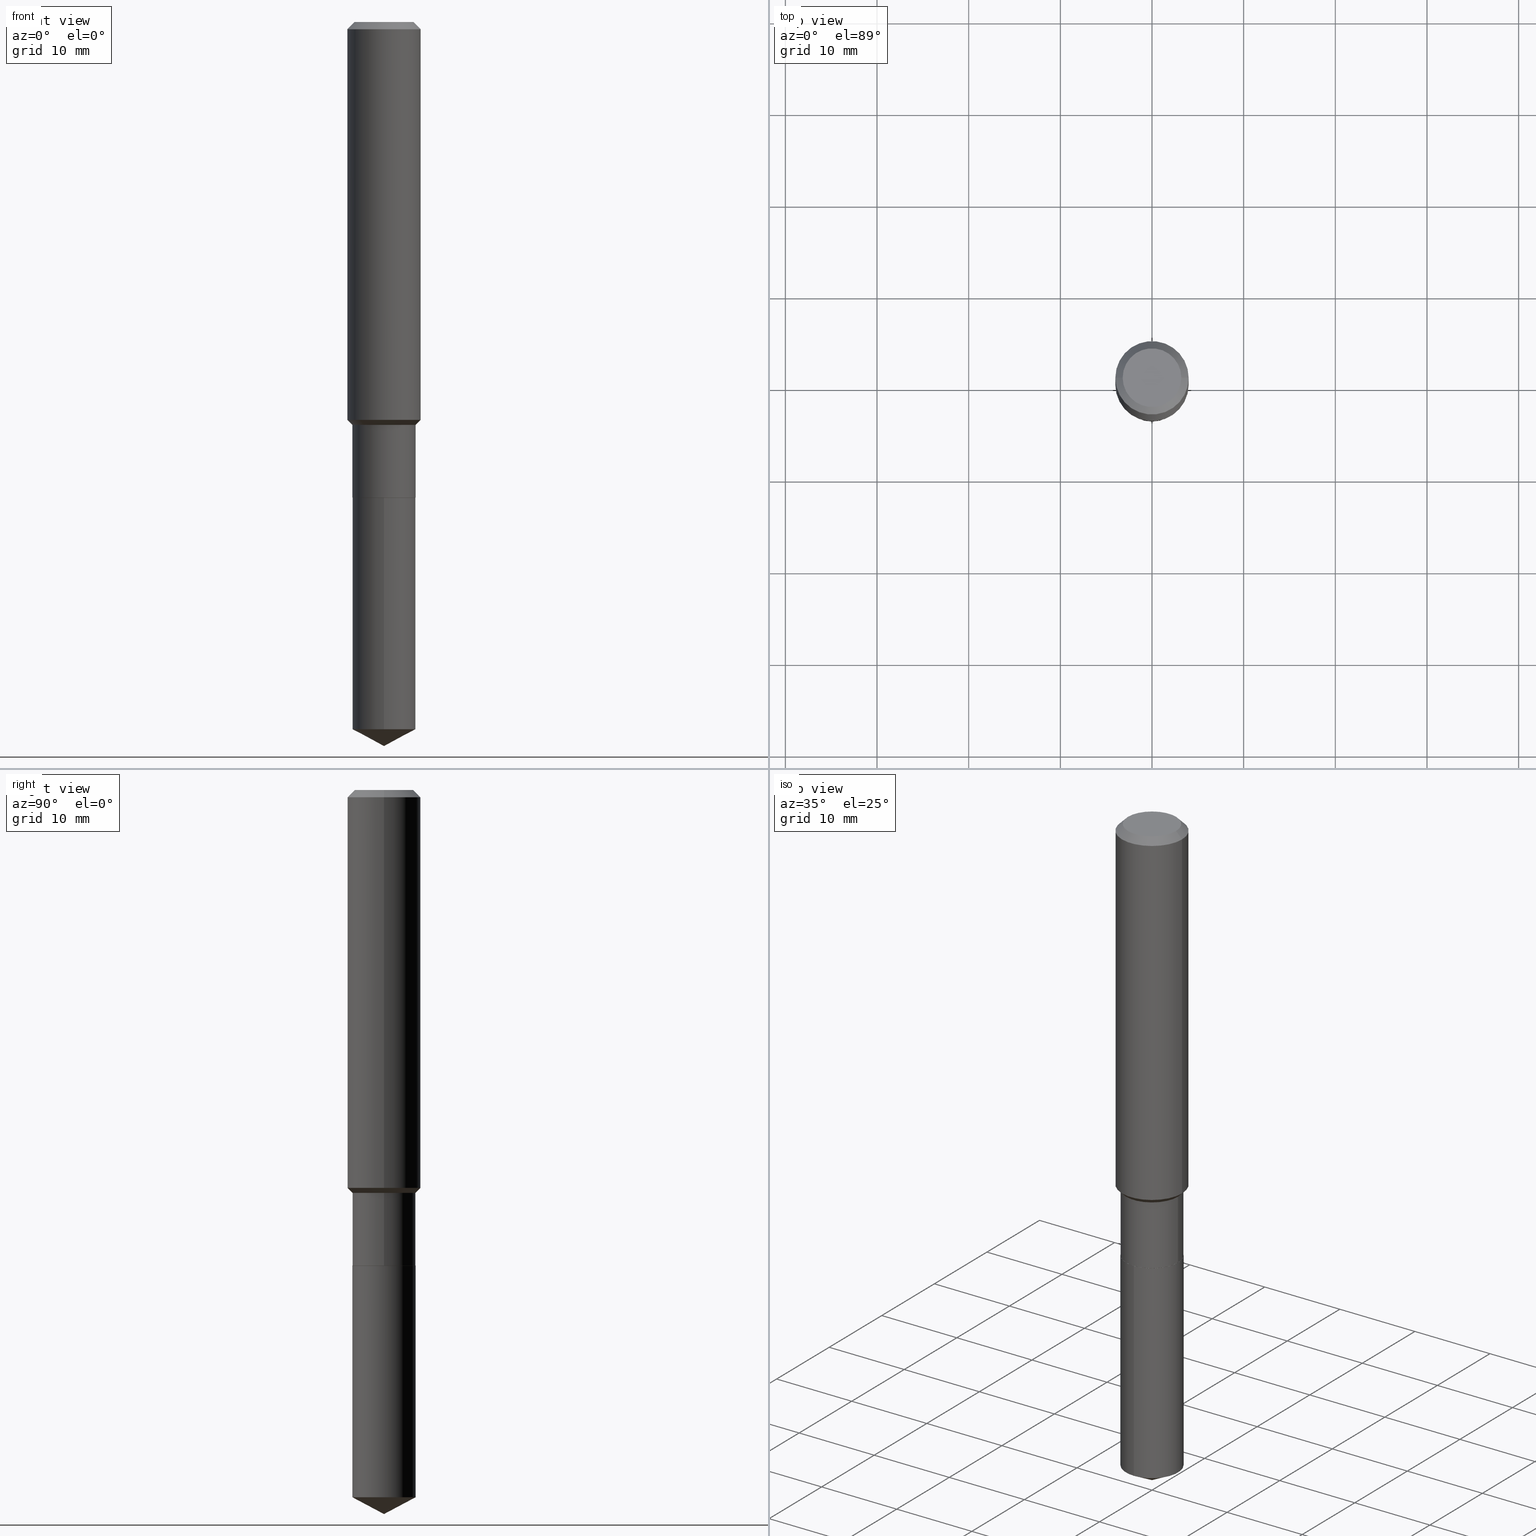
[diagram: canonical four-view strip — front | top / right | iso, engineering-drawing reading convention]
A machine part, canonical four-view strip (front | top / right | iso — engineering-drawing reading convention). The complete STEP part file that produces these views, byte-faithful:
ISO-10303-21;
HEADER;
FILE_DESCRIPTION (( 'STEP AP203' ),
    '1' );
FILE_NAME ('64639.STEP',
    '2024-04-24T18:32:12',
    ( '' ),
    ( '' ),
    'SwSTEP 2.0',
    'SolidWorks 2023',
    '' );
FILE_SCHEMA (( 'CONFIG_CONTROL_DESIGN' ));
ENDSEC;

DATA;
#1 = APPROVAL ( #198, 'UNSPECIFIED' ) ;
#2 = CARTESIAN_POINT ( 'NONE',  ( 0.1575000000000001954, -7.067281952019349393E-15, -1.709149999999999725 ) ) ;
#3 = VECTOR ( 'NONE', #383, 39.37007874015748143 ) ;
#4 = ORIENTED_EDGE ( 'NONE', *, *, #229, .T. ) ;
#5 = PERSON_AND_ORGANIZATION_ROLE ( 'creator' ) ;
#6 = LENGTH_MEASURE_WITH_UNIT ( LENGTH_MEASURE( 0.02539999999999999897 ), #429 );
#7 = CYLINDRICAL_SURFACE ( 'NONE', #277, 0.1358499999999999985 ) ;
#8 = COORDINATED_UNIVERSAL_TIME_OFFSET ( 5, 0, .BEHIND. ) ;
#9 = ORIENTED_EDGE ( 'NONE', *, *, #85, .T. ) ;
#10 = EDGE_CURVE ( 'NONE', #463, #348, #45, .T. ) ;
#11 = APPROVAL_ROLE ( '' ) ;
#12 = AXIS2_PLACEMENT_3D ( 'NONE', #445, #398, #102 ) ;
#13 = CARTESIAN_POINT ( 'NONE',  ( 4.232617409745234548E-29, -6.043055901269716567E-15, -1.730800000000000116 ) ) ;
#14 = LOCAL_TIME ( 14, 32, 12.00000000000000000, #462 ) ;
#15 = DIRECTION ( 'NONE',  ( -0.7071067811865464625, 7.493145998870351005E-15, 0.7071067811865486830 ) ) ;
#16 = CARTESIAN_POINT ( 'NONE',  ( 4.996826411678089735E-29, -7.134143819658199685E-15, -2.043299999999999894 ) ) ;
#17 = DIMENSIONAL_EXPONENTS ( 1.000000000000000000, 0.000000000000000000, 0.000000000000000000, 0.000000000000000000, 0.000000000000000000, 0.000000000000000000, 0.000000000000000000 ) ;
#18 = CC_DESIGN_PERSON_AND_ORGANIZATION_ASSIGNMENT ( #466, #243, ( #472 ) ) ;
#19 = LINE ( 'NONE', #103, #353 ) ;
#20 = AXIS2_PLACEMENT_3D ( 'NONE', #413, #75, #234 ) ;
#21 = CARTESIAN_POINT ( 'NONE',  ( 7.429094882501991014E-29, -1.060723419885419791E-14, -3.037967273708788607 ) ) ;
#22 = ADVANCED_FACE ( 'NONE', ( #43 ), #449, .T. ) ;
#23 = DIRECTION ( 'NONE',  ( 2.438088387897960049E-29, -3.491481338843145188E-15, -1.000000000000000000 ) ) ;
#24 = ADVANCED_FACE ( 'NONE', ( #92 ), #61, .T. ) ;
#25 = DIRECTION ( 'NONE',  ( -2.438088387897960049E-29, 3.491481338843145188E-15, 1.000000000000000000 ) ) ;
#26 = VECTOR ( 'NONE', #331, 39.37007874015748143 ) ;
#27 = LOCAL_TIME ( 14, 32, 12.00000000000000000, #122 ) ;
#28 = FACE_OUTER_BOUND ( 'NONE', #119, .T. ) ;
#29 = ADVANCED_FACE ( 'NONE', ( #176 ), #326, .T. ) ;
#30 = LINE ( 'NONE', #191, #188 ) ;
#31 = CARTESIAN_POINT ( 'NONE',  ( 0.000000000000000000, 0.000000000000000000, 0.000000000000000000 ) ) ;
#32 = ORIENTED_EDGE ( 'NONE', *, *, #406, .F. ) ;
#33 = CIRCLE ( 'NONE', #426, 0.1358499999999999985 ) ;
#34 = CIRCLE ( 'NONE', #254, 0.1358499999999999985 ) ;
#35 = LINE ( 'NONE', #420, #3 ) ;
#36 = DIRECTION ( 'NONE',  ( 2.445468806185136597E-29, -3.491481338843145583E-15, -1.000000000000000000 ) ) ;
#37 = VERTEX_POINT ( 'NONE', #206 ) ;
#38 = DATE_TIME_ROLE ( 'classification_date' ) ;
#39 = CARTESIAN_POINT ( 'NONE',  ( 7.703226739483228723E-31, -1.099816621735597661E-16, -0.03150000000000019451 ) ) ;
#40 = ADVANCED_FACE ( 'NONE', ( #328 ), #130, .T. ) ;
#41 = COORDINATED_UNIVERSAL_TIME_OFFSET ( 5, 0, .BEHIND. ) ;
#42 = AXIS2_PLACEMENT_3D ( 'NONE', #489, #152, #230 ) ;
#43 = FACE_OUTER_BOUND ( 'NONE', #74, .T. ) ;
#44 = APPROVAL_STATUS ( 'not_yet_approved' ) ;
#45 = LINE ( 'NONE', #465, #342 ) ;
#46 = CARTESIAN_POINT ( 'NONE',  ( -9.486354797636292620E-16, -0.1358500000000071317, -2.043299999999999450 ) ) ;
#47 = VERTEX_POINT ( 'NONE', #395 ) ;
#48 = EDGE_CURVE ( 'NONE', #108, #334, #128, .T. ) ;
#49 = LINE ( 'NONE', #213, #368 ) ;
#50 = CIRCLE ( 'NONE', #90, 0.1353499999999999981 ) ;
#51 = CIRCLE ( 'NONE', #42, 0.1575000000000000011 ) ;
#52 = ADVANCED_FACE ( 'NONE', ( #53 ), #389, .F. ) ;
#53 = FACE_OUTER_BOUND ( 'NONE', #308, .T. ) ;
#54 = DIRECTION ( 'NONE',  ( 1.000000000000000000, -6.982962677686269866E-15, 0.000000000000000000 ) ) ;
#55 = DIRECTION ( 'NONE',  ( 1.000000000000000000, -6.982962677686265133E-15, 0.000000000000000000 ) ) ;
#56 = CARTESIAN_POINT ( 'NONE',  ( 4.996826411678089735E-29, -7.134143819658199685E-15, -2.043299999999999894 ) ) ;
#57 = VECTOR ( 'NONE', #486, 39.37007874015748143 ) ;
#58 = FACE_OUTER_BOUND ( 'NONE', #307, .T. ) ;
#59 = PLANE ( 'NONE',  #437 ) ;
#60 = CARTESIAN_POINT ( 'NONE',  ( -9.486354797636292620E-16, -0.1358500000000071317, -2.043299999999999450 ) ) ;
#61 = CONICAL_SURFACE ( 'NONE', #269, 0.1353499999999999981, 0.7853981633975507526 ) ;
#62 = CIRCLE ( 'NONE', #12, 0.1358500000000000263 ) ;
#63 = VECTOR ( 'NONE', #134, 39.37007874015748143 ) ;
#64 = DIRECTION ( 'NONE',  ( -2.445308632458337588E-29, 3.491710716736444138E-15, 1.000000000000000000 ) ) ;
#65 = APPROVAL_DATE_TIME ( #485, #1 ) ;
#66 = FACE_OUTER_BOUND ( 'NONE', #382, .T. ) ;
#67 = PERSON_AND_ORGANIZATION_ROLE ( 'classification_officer' ) ;
#68 = DIRECTION ( 'NONE',  ( 1.000000000000000000, -6.982962677686269866E-15, 0.000000000000000000 ) ) ;
#69 = EDGE_CURVE ( 'NONE', #108, #463, #476, .T. ) ;
#70 = DATE_AND_TIME ( #264, #305 ) ;
#71 = AXIS2_PLACEMENT_3D ( 'NONE', #343, #228, #272 ) ;
#72 = CC_DESIGN_APPROVAL ( #423, ( #472 ) ) ;
#73 = DIRECTION ( 'NONE',  ( -2.445468806185136597E-29, 3.491481338843145583E-15, 1.000000000000000000 ) ) ;
#74 = EDGE_LOOP ( 'NONE', ( #402, #315, #298, #421 ) ) ;
#75 = DIRECTION ( 'NONE',  ( -2.445468806185136597E-29, 3.491481338843145583E-15, 1.000000000000000000 ) ) ;
#76 = ORIENTED_EDGE ( 'NONE', *, *, #141, .T. ) ;
#77 = MECHANICAL_CONTEXT ( 'NONE', #168, 'mechanical' ) ;
#78 = ORIENTED_EDGE ( 'NONE', *, *, #338, .F. ) ;
#79 = CLOSED_SHELL ( 'NONE', ( #432, #397, #210, #96, #52 ) ) ;
#80 = EDGE_CURVE ( 'NONE', #334, #47, #179, .T. ) ;
#81 = AXIS2_PLACEMENT_3D ( 'NONE', #104, #385, #197 ) ;
#82 = APPLICATION_PROTOCOL_DEFINITION ( 'international standard', 'config_control_design', 1994, #168 ) ;
#83 = PRODUCT_DEFINITION_FORMATION_WITH_SPECIFIED_SOURCE ( 'ANY', '', #286, .NOT_KNOWN. ) ;
#84 = DIRECTION ( 'NONE',  ( 1.000000000000000000, -6.982962677686269866E-15, 0.000000000000000000 ) ) ;
#85 = EDGE_CURVE ( 'NONE', #47, #310, #284, .T. ) ;
#86 = PERSON_AND_ORGANIZATION ( #339, #482 ) ;
#87 = DIRECTION ( 'NONE',  ( 2.445308632458337308E-29, -3.491710716736444138E-15, -1.000000000000000000 ) ) ;
#88 = DIRECTION ( 'NONE',  ( -0.7071067811865451302, 2.468850131082231817E-15, -0.7071067811865499042 ) ) ;
#89 = DIRECTION ( 'NONE',  ( -2.445468806185136597E-29, 3.491481338843145583E-15, 1.000000000000000000 ) ) ;
#90 = AXIS2_PLACEMENT_3D ( 'NONE', #321, #249, #55 ) ;
#91 =( GEOMETRIC_REPRESENTATION_CONTEXT ( 3 ) GLOBAL_UNCERTAINTY_ASSIGNED_CONTEXT ( ( #235 ) ) GLOBAL_UNIT_ASSIGNED_CONTEXT ( ( #357, #236, #175 ) ) REPRESENTATION_CONTEXT ( 'NONE', 'WORKASPACE' ) );
#92 = FACE_OUTER_BOUND ( 'NONE', #266, .T. ) ;
#93 = CC_DESIGN_PERSON_AND_ORGANIZATION_ASSIGNMENT ( #231, #67, ( #163 ) ) ;
#94 = DIRECTION ( 'NONE',  ( -1.000000000000000000, 6.982962677686265922E-15, 0.000000000000000000 ) ) ;
#95 = CARTESIAN_POINT ( 'NONE',  ( -0.1358499999999999708, 9.652723065300958949E-16, -6.682373320111289082E-30 ) ) ;
#96 = ADVANCED_FACE ( 'NONE', ( #468 ), #7, .T. ) ;
#97 = CARTESIAN_POINT ( 'NONE',  ( -9.439721640706201686E-47, 1.347742071746726764E-32, 3.860086710912459732E-18 ) ) ;
#98 = EDGE_CURVE ( 'NONE', #487, #461, #33, .T. ) ;
#99 = CIRCLE ( 'NONE', #224, 0.1260000000000000009 ) ;
#100 = CC_DESIGN_APPROVAL ( #170, ( #83 ) ) ;
#101 = EDGE_LOOP ( 'NONE', ( #158, #196, #145, #455 ) ) ;
#102 = DIRECTION ( 'NONE',  ( -6.982962677686265133E-15, -1.000000000000000000, 4.021859394426592341E-15 ) ) ;
#103 = CARTESIAN_POINT ( 'NONE',  ( -0.1353499999999999981, -6.172424226806904294E-15, -2.043299999999999894 ) ) ;
#104 = CARTESIAN_POINT ( 'NONE',  ( 4.995603677274997494E-29, -7.132398078988778970E-15, -2.042800000000000171 ) ) ;
#105 = EDGE_CURVE ( 'NONE', #37, #312, #50, .T. ) ;
#106 = EDGE_LOOP ( 'NONE', ( #414, #271, #318, #293 ) ) ;
#107 = DIRECTION ( 'NONE',  ( -2.445308632458337588E-29, 3.491710716736444138E-15, 1.000000000000000000 ) ) ;
#108 = VERTEX_POINT ( 'NONE', #292 ) ;
#109 = ORIENTED_EDGE ( 'NONE', *, *, #415, .T. ) ;
#110 = CARTESIAN_POINT ( 'NONE',  ( -8.866626721222367767E-28, 1.266094758724211948E-13, 36.25987874015748247 ) ) ;
#111 = ORIENTED_EDGE ( 'NONE', *, *, #448, .T. ) ;
#112 = CC_DESIGN_PERSON_AND_ORGANIZATION_ASSIGNMENT ( #416, #451, ( #83 ) ) ;
#113 = CYLINDRICAL_SURFACE ( 'NONE', #261, 0.1358499999999999708 ) ;
#114 = EDGE_LOOP ( 'NONE', ( #257, #4, #422, #481 ) ) ;
#115 = AXIS2_PLACEMENT_3D ( 'NONE', #56, #183, #473 ) ;
#116 = CARTESIAN_POINT ( 'NONE',  ( 0.1353499999999999981, -8.079287818083035638E-15, -2.043299999999999894 ) ) ;
#117 = VERTEX_POINT ( 'NONE', #374 ) ;
#118 = DIRECTION ( 'NONE',  ( 0.000000000000000000, 0.000000000000000000, 1.000000000000000000 ) ) ;
#119 = EDGE_LOOP ( 'NONE', ( #233, #192 ) ) ;
#120 = ORIENTED_EDGE ( 'NONE', *, *, #184, .T. ) ;
#121 = MANIFOLD_SOLID_BREP ( 'Body-Move/Copy2[2]', #181 ) ;
#122 = COORDINATED_UNIVERSAL_TIME_OFFSET ( 5, 0, .BEHIND. ) ;
#123 = VERTEX_POINT ( 'NONE', #256 ) ;
#124 = CC_DESIGN_PERSON_AND_ORGANIZATION_ASSIGNMENT ( #267, #5, ( #83 ) ) ;
#125 = AXIS2_PLACEMENT_3D ( 'NONE', #127, #89, #84 ) ;
#126 = VECTOR ( 'NONE', #199, 39.37007874015748143 ) ;
#127 = CARTESIAN_POINT ( 'NONE',  ( 4.232617409745234548E-29, -6.043055901269716567E-15, -1.730800000000000116 ) ) ;
#128 = LINE ( 'NONE', #323, #407 ) ;
#129 = DIRECTION ( 'NONE',  ( -6.982962677686266711E-15, -1.000000000000000000, 4.021859394426593130E-15 ) ) ;
#130 = CONICAL_SURFACE ( 'NONE', #456, 0.1575000000000000011, 0.7853981633974449483 ) ;
#131 = ADVANCED_FACE ( 'NONE', ( #58 ), #161, .T. ) ;
#132 = ORIENTED_EDGE ( 'NONE', *, *, #98, .F. ) ;
#133 = PRODUCT_DEFINITION_SHAPE ( 'NONE', 'NONE',  #472 ) ;
#134 = DIRECTION ( 'NONE',  ( -2.445468806185136877E-29, 3.491481338843145188E-15, 1.000000000000000000 ) ) ;
#135 = ADVANCED_FACE ( 'NONE', ( #144 ), #369, .F. ) ;
#136 = ORIENTED_EDGE ( 'NONE', *, *, #167, .T. ) ;
#137 = DIRECTION ( 'NONE',  ( -2.445468806185136597E-29, 3.491481338843145583E-15, 1.000000000000000000 ) ) ;
#138 = ORIENTED_EDGE ( 'NONE', *, *, #202, .T. ) ;
#139 = DIRECTION ( 'NONE',  ( 1.000000000000000000, -6.982962677686265922E-15, 4.876176775795935793E-29 ) ) ;
#140 = AXIS2_PLACEMENT_3D ( 'NONE', #110, #107, #262 ) ;
#141 = EDGE_CURVE ( 'NONE', #334, #348, #223, .T. ) ;
#142 = DIRECTION ( 'NONE',  ( 1.000000000000000000, -6.982962677686265922E-15, 4.876281427513067258E-29 ) ) ;
#143 = ADVANCED_FACE ( 'NONE', ( #28 ), #59, .F. ) ;
#144 = FACE_OUTER_BOUND ( 'NONE', #360, .T. ) ;
#145 = ORIENTED_EDGE ( 'NONE', *, *, #167, .F. ) ;
#146 = DIRECTION ( 'NONE',  ( -2.445468806185136597E-29, 3.491481338843145583E-15, 1.000000000000000000 ) ) ;
#147 = AXIS2_PLACEMENT_3D ( 'NONE', #356, #280, #180 ) ;
#148 = AXIS2_PLACEMENT_3D ( 'NONE', #189, #289, #447 ) ;
#149 = ORIENTED_EDGE ( 'NONE', *, *, #151, .T. ) ;
#150 = APPROVAL_PERSON_ORGANIZATION ( #391, #170, #205 ) ;
#151 = EDGE_CURVE ( 'NONE', #263, #461, #367, .T. ) ;
#152 = DIRECTION ( 'NONE',  ( -2.445468806185136597E-29, 3.491481338843145583E-15, 1.000000000000000000 ) ) ;
#153 = VERTEX_POINT ( 'NONE', #185 ) ;
#154 = EDGE_LOOP ( 'NONE', ( #372, #443, #120, #392 ) ) ;
#155 = EDGE_CURVE ( 'NONE', #157, #117, #299, .T. ) ;
#156 = CYLINDRICAL_SURFACE ( 'NONE', #329, 0.1358499999999999985 ) ;
#157 = VERTEX_POINT ( 'NONE', #337 ) ;
#158 = ORIENTED_EDGE ( 'NONE', *, *, #217, .T. ) ;
#159 = CARTESIAN_POINT ( 'NONE',  ( 0.000000000000000000, 0.000000000000000000, 0.000000000000000000 ) ) ;
#160 = EDGE_LOOP ( 'NONE', ( #358, #287, #376 ) ) ;
#161 = CONICAL_SURFACE ( 'NONE', #436, 0.1358499999999999708, 0.7853981633974467247 ) ;
#162 = AXIS2_PLACEMENT_3D ( 'NONE', #459, #118, #433 ) ;
#163 = SECURITY_CLASSIFICATION ( '', '', #386 ) ;
#164 = CARTESIAN_POINT ( 'NONE',  ( -9.486354797636052018E-16, -0.1358500000000106289, -3.037967273708788163 ) ) ;
#165 = EDGE_CURVE ( 'NONE', #348, #334, #304, .T. ) ;
#166 = ORIENTED_EDGE ( 'NONE', *, *, #338, .T. ) ;
#167 = EDGE_CURVE ( 'NONE', #461, #487, #34, .T. ) ;
#168 = APPLICATION_CONTEXT ( 'configuration controlled 3d designs of mechanical parts and assemblies' ) ;
#169 = APPROVAL_ROLE ( '' ) ;
#170 = APPROVAL ( #44, 'UNSPECIFIED' ) ;
#171 = DIRECTION ( 'NONE',  ( -2.445308632458337588E-29, 3.491710716736444138E-15, 1.000000000000000000 ) ) ;
#172 = DIRECTION ( 'NONE',  ( -6.165590087286835240E-15, -0.8829475928589264333, 0.4694715627858918050 ) ) ;
#173 = DIRECTION ( 'NONE',  ( -2.445468806185136597E-29, 3.491481338843145583E-15, 1.000000000000000000 ) ) ;
#174 = CIRCLE ( 'NONE', #71, 0.1358499999999999985 ) ;
#175 =( NAMED_UNIT ( * ) SI_UNIT ( $, .STERADIAN. ) SOLID_ANGLE_UNIT ( ) );
#176 = FACE_OUTER_BOUND ( 'NONE', #458, .T. ) ;
#177 = PRODUCT_RELATED_PRODUCT_CATEGORY ( 'detail', '', ( #286 ) ) ;
#178 = EDGE_CURVE ( 'NONE', #117, #263, #62, .T. ) ;
#179 = LINE ( 'NONE', #246, #247 ) ;
#180 = DIRECTION ( 'NONE',  ( 1.000000000000000000, -6.982962677686265922E-15, 0.000000000000000000 ) ) ;
#181 = CLOSED_SHELL ( 'NONE', ( #24, #40, #300, #131, #306, #440, #22, #29, #371, #143, #135, #242 ) ) ;
#182 = DIRECTION ( 'NONE',  ( -0.7071067811866199593, 7.493145998870616062E-15, 0.7071067811864750752 ) ) ;
#183 = DIRECTION ( 'NONE',  ( -2.445468806185136597E-29, 3.491481338843145583E-15, 1.000000000000000000 ) ) ;
#184 = EDGE_CURVE ( 'NONE', #123, #463, #471, .T. ) ;
#185 = CARTESIAN_POINT ( 'NONE',  ( -0.1260000000000000009, 9.348441284752484904E-16, 3.860086710906114178E-18 ) ) ;
#186 = EDGE_CURVE ( 'NONE', #153, #208, #464, .T. ) ;
#187 = DIRECTION ( 'NONE',  ( 1.000000000000000000, -6.982962677686265922E-15, 0.000000000000000000 ) ) ;
#188 = VECTOR ( 'NONE', #88, 39.37007874015748143 ) ;
#189 = CARTESIAN_POINT ( 'NONE',  ( -8.866626721222367767E-28, 1.266094758724211948E-13, 36.25987874015748247 ) ) ;
#190 = VERTEX_POINT ( 'NONE', #446 ) ;
#191 = CARTESIAN_POINT ( 'NONE',  ( -0.1575000000000000011, 9.898349595620272334E-16, -0.03150000000000019451 ) ) ;
#192 = ORIENTED_EDGE ( 'NONE', *, *, #251, .T. ) ;
#193 = CYLINDRICAL_SURFACE ( 'NONE', #201, 0.1575000000000000844 ) ;
#194 = AXIS2_PLACEMENT_3D ( 'NONE', #259, #373, #187 ) ;
#195 = CARTESIAN_POINT ( 'NONE',  ( 0.1575000000000000011, -1.209798283909146741E-15, -0.03150000000000019451 ) ) ;
#196 = ORIENTED_EDGE ( 'NONE', *, *, #412, .T. ) ;
#197 = DIRECTION ( 'NONE',  ( 1.000000000000000000, -6.982962677686268288E-15, 0.000000000000000000 ) ) ;
#198 = APPROVAL_STATUS ( 'not_yet_approved' ) ;
#199 = DIRECTION ( 'NONE',  ( 0.7071067811865451302, -7.319954787623248157E-15, -0.7071067811865499042 ) ) ;
#200 = AXIS2_PLACEMENT_3D ( 'NONE', #434, #87, #204 ) ;
#201 = AXIS2_PLACEMENT_3D ( 'NONE', #31, #340, #303 ) ;
#202 = EDGE_CURVE ( 'NONE', #312, #190, #19, .T. ) ;
#203 = DATE_AND_TIME ( #387, #14 ) ;
#204 = DIRECTION ( 'NONE',  ( 6.982962677686265922E-15, 1.000000000000000000, -3.491710716736444138E-15 ) ) ;
#205 = APPROVAL_ROLE ( '' ) ;
#206 = CARTESIAN_POINT ( 'NONE',  ( 0.1353499999999999981, -8.079287818083035638E-15, -2.043299999999999894 ) ) ;
#207 = APPLICATION_PROTOCOL_DEFINITION ( 'international standard', 'config_control_design', 1994, #245 ) ;
#208 = VERTEX_POINT ( 'NONE', #401 ) ;
#209 = CC_DESIGN_PERSON_AND_ORGANIZATION_ASSIGNMENT ( #325, #279, ( #286 ) ) ;
#210 = ADVANCED_FACE ( 'NONE', ( #222 ), #344, .T. ) ;
#211 = AXIS2_PLACEMENT_3D ( 'NONE', #405, #25, #139 ) ;
#212 = AXIS2_PLACEMENT_3D ( 'NONE', #39, #36, #452 ) ;
#213 = CARTESIAN_POINT ( 'NONE',  ( 7.605398908671921742E-29, -1.085991867119368954E-14, -3.110199999999999854 ) ) ;
#214 = ORIENTED_EDGE ( 'NONE', *, *, #105, .T. ) ;
#215 = CARTESIAN_POINT ( 'NONE',  ( 7.703226739483228723E-31, -1.099816621735597661E-16, -0.03150000000000019451 ) ) ;
#216 = DIRECTION ( 'NONE',  ( -2.445468806185136597E-29, 3.491481338843145583E-15, 1.000000000000000000 ) ) ;
#217 = EDGE_CURVE ( 'NONE', #263, #117, #408, .T. ) ;
#218 = CONICAL_SURFACE ( 'NONE', #140, 74.04434902938356799, 1.082104136236486713 ) ;
#219 = CARTESIAN_POINT ( 'NONE',  ( 0.1358499999999999708, -9.486354797636791575E-16, 6.624286149918777895E-30 ) ) ;
#220 = DIRECTION ( 'NONE',  ( 1.000000000000000000, -6.982962677686265922E-15, 0.000000000000000000 ) ) ;
#221 = DIRECTION ( 'NONE',  ( -2.445308632458337308E-29, 3.491710716736444138E-15, 1.000000000000000000 ) ) ;
#222 = FACE_OUTER_BOUND ( 'NONE', #160, .T. ) ;
#223 = CIRCLE ( 'NONE', #354, 0.1575000000000001954 ) ;
#224 = AXIS2_PLACEMENT_3D ( 'NONE', #97, #73, #457 ) ;
#225 = DIRECTION ( 'NONE',  ( -6.982962677686266711E-15, -1.000000000000000000, 4.021859394426593130E-15 ) ) ;
#226 = DESIGN_CONTEXT ( 'detailed design', #245, 'design' ) ;
#227 = ORIENTED_EDGE ( 'NONE', *, *, #186, .F. ) ;
#228 = DIRECTION ( 'NONE',  ( -2.445468806185136597E-29, 3.491481338843145583E-15, 1.000000000000000000 ) ) ;
#229 = EDGE_CURVE ( 'NONE', #190, #108, #439, .T. ) ;
#230 = DIRECTION ( 'NONE',  ( 1.000000000000000000, -6.982962677686265922E-15, 0.000000000000000000 ) ) ;
#231 = PERSON_AND_ORGANIZATION ( #339, #482 ) ;
#232 = DIRECTION ( 'NONE',  ( 0.7071067811866199593, -2.468850131083015945E-15, 0.7071067811864750752 ) ) ;
#233 = ORIENTED_EDGE ( 'NONE', *, *, #186, .T. ) ;
#234 = DIRECTION ( 'NONE',  ( 1.000000000000000000, -6.982962677686265133E-15, 0.000000000000000000 ) ) ;
#235 = UNCERTAINTY_MEASURE_WITH_UNIT (LENGTH_MEASURE( 1.000000000000000082E-05 ), #357, 'distance_accuracy_value', 'NONE');
#236 =( NAMED_UNIT ( * ) PLANE_ANGLE_UNIT ( ) SI_UNIT ( $, .RADIAN. ) );
#237 = ORIENTED_EDGE ( 'NONE', *, *, #105, .F. ) ;
#238 = CONICAL_SURFACE ( 'NONE', #115, 0.1353499999999999981, 0.7853981633975507526 ) ;
#239 = CC_DESIGN_SECURITY_CLASSIFICATION ( #163, ( #83 ) ) ;
#240 = APPROVAL_STATUS ( 'not_yet_approved' ) ;
#241 = ORIENTED_EDGE ( 'NONE', *, *, #412, .F. ) ;
#242 = ADVANCED_FACE ( 'NONE', ( #399 ), #238, .T. ) ;
#243 = PERSON_AND_ORGANIZATION_ROLE ( 'creator' ) ;
#244 = DIRECTION ( 'NONE',  ( -2.445308632458337588E-29, 3.491710716736444138E-15, 1.000000000000000000 ) ) ;
#245 = APPLICATION_CONTEXT ( 'configuration controlled 3d designs of mechanical parts and assemblies' ) ;
#246 = CARTESIAN_POINT ( 'NONE',  ( -0.1575000000000000844, 1.119104808822158392E-15, -7.747322767151481189E-30 ) ) ;
#247 = VECTOR ( 'NONE', #366, 39.37007874015748143 ) ;
#248 = LOCAL_TIME ( 14, 32, 12.00000000000000000, #41 ) ;
#249 = DIRECTION ( 'NONE',  ( -2.445468806185136597E-29, 3.491481338843145583E-15, 1.000000000000000000 ) ) ;
#250 = DIRECTION ( 'NONE',  ( -6.982962677686265133E-15, -1.000000000000000000, 4.021859394426592341E-15 ) ) ;
#251 = EDGE_CURVE ( 'NONE', #208, #153, #99, .T. ) ;
#252 = EDGE_CURVE ( 'NONE', #123, #190, #174, .T. ) ;
#253 = DIRECTION ( 'NONE',  ( -2.445468806185136877E-29, 3.491481338843145188E-15, 1.000000000000000000 ) ) ;
#254 = AXIS2_PLACEMENT_3D ( 'NONE', #442, #336, #295 ) ;
#255 = APPROVAL_PERSON_ORGANIZATION ( #320, #1, #169 ) ;
#256 = CARTESIAN_POINT ( 'NONE',  ( 0.1358499999999999985, -8.081033558752457931E-15, -2.042800000000000171 ) ) ;
#257 = ORIENTED_EDGE ( 'NONE', *, *, #252, .T. ) ;
#258 = DIRECTION ( 'NONE',  ( 1.000000000000000000, -6.982962677686269866E-15, 0.000000000000000000 ) ) ;
#259 = CARTESIAN_POINT ( 'NONE',  ( 4.179673010091325437E-29, -5.967465330283761124E-15, -1.709149999999999725 ) ) ;
#260 = LINE ( 'NONE', #480, #57 ) ;
#261 = AXIS2_PLACEMENT_3D ( 'NONE', #317, #346, #309 ) ;
#262 = DIRECTION ( 'NONE',  ( -6.982962677686266711E-15, -1.000000000000000000, 3.541896320645559291E-15 ) ) ;
#263 = VERTEX_POINT ( 'NONE', #164 ) ;
#264 = CALENDAR_DATE ( 2024, 24, 4 ) ;
#265 = LINE ( 'NONE', #116, #362 ) ;
#266 = EDGE_LOOP ( 'NONE', ( #214, #138, #273, #274 ) ) ;
#267 = PERSON_AND_ORGANIZATION ( #339, #482 ) ;
#268 = CARTESIAN_POINT ( 'NONE',  ( -0.1353499999999999981, -6.169774999632793093E-15, -2.043299999999999894 ) ) ;
#269 = AXIS2_PLACEMENT_3D ( 'NONE', #16, #281, #428 ) ;
#270 = CIRCLE ( 'NONE', #470, 0.1358499999999999708 ) ;
#271 = ORIENTED_EDGE ( 'NONE', *, *, #80, .T. ) ;
#272 = DIRECTION ( 'NONE',  ( 1.000000000000000000, -6.982962677686268288E-15, 0.000000000000000000 ) ) ;
#273 = ORIENTED_EDGE ( 'NONE', *, *, #252, .F. ) ;
#274 = ORIENTED_EDGE ( 'NONE', *, *, #301, .F. ) ;
#275 = CALENDAR_DATE ( 2024, 24, 4 ) ;
#276 = DIRECTION ( 'NONE',  ( -2.445468806185136597E-29, 3.491481338843145583E-15, 1.000000000000000000 ) ) ;
#277 = AXIS2_PLACEMENT_3D ( 'NONE', #430, #244, #129 ) ;
#278 = APPROVAL_PERSON_ORGANIZATION ( #86, #423, #11 ) ;
#279 = PERSON_AND_ORGANIZATION_ROLE ( 'design_owner' ) ;
#280 = DIRECTION ( 'NONE',  ( -2.445468806185136597E-29, 3.491481338843145583E-15, 1.000000000000000000 ) ) ;
#281 = DIRECTION ( 'NONE',  ( -2.445468806185136597E-29, 3.491481338843145583E-15, 1.000000000000000000 ) ) ;
#282 = MANIFOLD_SOLID_BREP ( 'Body-Move/Copy2[1]', #79 ) ;
#283 = CARTESIAN_POINT ( 'NONE',  ( 4.996826411678089735E-29, -7.134143819658199685E-15, -2.043299999999999894 ) ) ;
#284 = CIRCLE ( 'NONE', #147, 0.1575000000000000011 ) ;
#285 = VECTOR ( 'NONE', #221, 39.37007874015748143 ) ;
#286 = PRODUCT ( '64639', '64639', '', ( #77 ) ) ;
#287 = ORIENTED_EDGE ( 'NONE', *, *, #453, .T. ) ;
#288 = CC_DESIGN_DATE_AND_TIME_ASSIGNMENT ( #377, #38, ( #163 ) ) ;
#289 = DIRECTION ( 'NONE',  ( -2.445308632458337588E-29, 3.491710716736444138E-15, 1.000000000000000000 ) ) ;
#290 = ORIENTED_EDGE ( 'NONE', *, *, #85, .F. ) ;
#291 = ORIENTED_EDGE ( 'NONE', *, *, #301, .T. ) ;
#292 = CARTESIAN_POINT ( 'NONE',  ( -0.1358499999999999708, -5.622454683599151480E-15, -1.730800000000000116 ) ) ;
#293 = ORIENTED_EDGE ( 'NONE', *, *, #365, .F. ) ;
#294 = CIRCLE ( 'NONE', #81, 0.1358499999999999985 ) ;
#295 = DIRECTION ( 'NONE',  ( -6.982962677686266711E-15, -1.000000000000000000, 4.021859394426593130E-15 ) ) ;
#296 = ORIENTED_EDGE ( 'NONE', *, *, #217, .F. ) ;
#297 = DIRECTION ( 'NONE',  ( -2.445468806185136597E-29, 3.491481338843145583E-15, 1.000000000000000000 ) ) ;
#298 = ORIENTED_EDGE ( 'NONE', *, *, #10, .T. ) ;
#299 = LINE ( 'NONE', #330, #26 ) ;
#300 = ADVANCED_FACE ( 'NONE', ( #411 ), #193, .T. ) ;
#301 = EDGE_CURVE ( 'NONE', #37, #123, #265, .T. ) ;
#302 = AXIS2_PLACEMENT_3D ( 'NONE', #13, #276, #54 ) ;
#303 = DIRECTION ( 'NONE',  ( 1.000000000000000000, -6.982962677686267499E-15, 4.876176775795936353E-29 ) ) ;
#304 = CIRCLE ( 'NONE', #194, 0.1575000000000001954 ) ;
#305 = LOCAL_TIME ( 14, 32, 12.00000000000000000, #8 ) ;
#306 = ADVANCED_FACE ( 'NONE', ( #352 ), #113, .T. ) ;
#307 = EDGE_LOOP ( 'NONE', ( #109, #394, #316, #490 ) ) ;
#308 = EDGE_LOOP ( 'NONE', ( #136, #441 ) ) ;
#309 = DIRECTION ( 'NONE',  ( 1.000000000000000000, -6.982962677686266711E-15, 4.876176775795936353E-29 ) ) ;
#310 = VERTEX_POINT ( 'NONE', #195 ) ;
#311 = CARTESIAN_POINT ( 'NONE',  ( 4.996826411678089735E-29, -7.134143819658199685E-15, -2.043299999999999894 ) ) ;
#312 = VERTEX_POINT ( 'NONE', #268 ) ;
#313 = EDGE_LOOP ( 'NONE', ( #341, #345, #424, #327 ) ) ;
#314 = DIRECTION ( 'NONE',  ( 1.000000000000000000, -6.982962677686266711E-15, 4.876176775795936353E-29 ) ) ;
#315 = ORIENTED_EDGE ( 'NONE', *, *, #69, .T. ) ;
#316 = ORIENTED_EDGE ( 'NONE', *, *, #165, .F. ) ;
#317 = CARTESIAN_POINT ( 'NONE',  ( 0.000000000000000000, 0.000000000000000000, 0.000000000000000000 ) ) ;
#318 = ORIENTED_EDGE ( 'NONE', *, *, #431, .F. ) ;
#319 = ORIENTED_EDGE ( 'NONE', *, *, #332, .F. ) ;
#320 = PERSON_AND_ORGANIZATION ( #339, #482 ) ;
#321 = CARTESIAN_POINT ( 'NONE',  ( 4.996826411678089735E-29, -7.134143819658199685E-15, -2.043299999999999894 ) ) ;
#322 = CARTESIAN_POINT ( 'NONE',  ( 0.1358499999999999708, -6.991691381033395528E-15, -1.730800000000000116 ) ) ;
#323 = CARTESIAN_POINT ( 'NONE',  ( -0.1358499999999999708, -5.077783594739620278E-15, -1.730800000000000116 ) ) ;
#324 = AXIS2_PLACEMENT_3D ( 'NONE', #477, #297, #142 ) ;
#325 = PERSON_AND_ORGANIZATION ( #339, #482 ) ;
#326 = CYLINDRICAL_SURFACE ( 'NONE', #361, 0.1575000000000000844 ) ;
#327 = ORIENTED_EDGE ( 'NONE', *, *, #448, .F. ) ;
#328 = FACE_OUTER_BOUND ( 'NONE', #313, .T. ) ;
#329 = AXIS2_PLACEMENT_3D ( 'NONE', #311, #64, #225 ) ;
#330 = CARTESIAN_POINT ( 'NONE',  ( 7.606059214394604284E-29, -1.085898129549493464E-14, -3.110199999999999854 ) ) ;
#331 = DIRECTION ( 'NONE',  ( 6.273719981627766076E-15, 0.8829475928589297640, 0.4694715627858855878 ) ) ;
#332 = EDGE_CURVE ( 'NONE', #208, #310, #417, .T. ) ;
#333 = DIRECTION ( 'NONE',  ( -1.000000000000000000, 6.982962677686265922E-15, -4.876176775795935793E-29 ) ) ;
#334 = VERTEX_POINT ( 'NONE', #450 ) ;
#335 = EDGE_LOOP ( 'NONE', ( #418, #166, #291, #32 ) ) ;
#336 = DIRECTION ( 'NONE',  ( -2.445308632458337588E-29, 3.491710716736444138E-15, 1.000000000000000000 ) ) ;
#337 = CARTESIAN_POINT ( 'NONE',  ( 7.605398908671921742E-29, -1.085991867119368954E-14, -3.110199999999999854 ) ) ;
#338 = EDGE_CURVE ( 'NONE', #312, #37, #381, .T. ) ;
#339 = PERSON ( 'UNSPECIFIED', 'UNSPECIFIED', 'UNSPECIFIED', ('UNSPECIFIED'), ('UNSPECIFIED'), ('UNSPECIFIED') ) ;
#340 = DIRECTION ( 'NONE',  ( -2.445468806185136597E-29, 3.491481338843145583E-15, 1.000000000000000000 ) ) ;
#341 = ORIENTED_EDGE ( 'NONE', *, *, #251, .F. ) ;
#342 = VECTOR ( 'NONE', #469, 39.37007874015748143 ) ;
#343 = CARTESIAN_POINT ( 'NONE',  ( 4.995603677274997494E-29, -7.132398078988778970E-15, -2.042800000000000171 ) ) ;
#344 = CONICAL_SURFACE ( 'NONE', #148, 74.04434902938356799, 1.082104136236486713 ) ;
#345 = ORIENTED_EDGE ( 'NONE', *, *, #332, .T. ) ;
#346 = DIRECTION ( 'NONE',  ( -2.445468806185136597E-29, 3.491481338843145583E-15, 1.000000000000000000 ) ) ;
#347 = ORIENTED_EDGE ( 'NONE', *, *, #155, .T. ) ;
#348 = VERTEX_POINT ( 'NONE', #2 ) ;
#349 = CALENDAR_DATE ( 2024, 24, 4 ) ;
#350 = CYLINDRICAL_SURFACE ( 'NONE', #388, 0.1358499999999999708 ) ;
#351 = CALENDAR_DATE ( 2024, 24, 4 ) ;
#352 = FACE_OUTER_BOUND ( 'NONE', #114, .T. ) ;
#353 = VECTOR ( 'NONE', #182, 39.37007874015748143 ) ;
#354 = AXIS2_PLACEMENT_3D ( 'NONE', #403, #216, #220 ) ;
#355 = APPROVAL_DATE_TIME ( #203, #423 ) ;
#356 = CARTESIAN_POINT ( 'NONE',  ( 7.703226739483228723E-31, -1.099816621735597661E-16, -0.03150000000000019451 ) ) ;
#357 =( CONVERSION_BASED_UNIT ( 'INCH', #6 ) LENGTH_UNIT ( ) NAMED_UNIT ( #17 ) );
#358 = ORIENTED_EDGE ( 'NONE', *, *, #155, .F. ) ;
#359 = CARTESIAN_POINT ( 'NONE',  ( 9.652723065301704422E-16, 0.1358499999999928654, -2.043300000000000782 ) ) ;
#360 = EDGE_LOOP ( 'NONE', ( #237, #78 ) ) ;
#361 = AXIS2_PLACEMENT_3D ( 'NONE', #467, #173, #438 ) ;
#362 = VECTOR ( 'NONE', #232, 39.37007874015748143 ) ;
#363 = LOCAL_TIME ( 14, 32, 12.00000000000000000, #410 ) ;
#364 = DIRECTION ( 'NONE',  ( 2.445468806185136597E-29, -3.491481338843145583E-15, -1.000000000000000000 ) ) ;
#365 = EDGE_CURVE ( 'NONE', #348, #310, #35, .T. ) ;
#366 = DIRECTION ( 'NONE',  ( -2.445468806185136877E-29, 3.491481338843145188E-15, 1.000000000000000000 ) ) ;
#367 = LINE ( 'NONE', #60, #285 ) ;
#368 = VECTOR ( 'NONE', #172, 39.37007874015748143 ) ;
#369 = PLANE ( 'NONE',  #211 ) ;
#370 = CARTESIAN_POINT ( 'NONE',  ( -4.719860820353100843E-47, 6.738710358733633822E-33, 1.930043355456229866E-18 ) ) ;
#371 = ADVANCED_FACE ( 'NONE', ( #484 ), #444, .T. ) ;
#372 = ORIENTED_EDGE ( 'NONE', *, *, #229, .F. ) ;
#373 = DIRECTION ( 'NONE',  ( -2.445468806185136597E-29, 3.491481338843145583E-15, 1.000000000000000000 ) ) ;
#374 = CARTESIAN_POINT ( 'NONE',  ( 9.652723065301704422E-16, 0.1358499999999894237, -3.037967273708789051 ) ) ;
#375 = DIRECTION ( 'NONE',  ( -2.445468806185136597E-29, 3.491481338843145583E-15, 1.000000000000000000 ) ) ;
#376 = ORIENTED_EDGE ( 'NONE', *, *, #178, .F. ) ;
#377 = DATE_AND_TIME ( #351, #248 ) ;
#378 = CARTESIAN_POINT ( 'NONE',  ( 0.1575000000000000011, -1.190510096822576026E-15, -0.03150000000000019451 ) ) ;
#379 = EDGE_LOOP ( 'NONE', ( #241, #474, #149, #132 ) ) ;
#380 = FACE_OUTER_BOUND ( 'NONE', #101, .T. ) ;
#381 = CIRCLE ( 'NONE', #20, 0.1353499999999999981 ) ;
#382 = EDGE_LOOP ( 'NONE', ( #479, #347, #296 ) ) ;
#383 = DIRECTION ( 'NONE',  ( -2.445468806185136877E-29, 3.491481338843145188E-15, 1.000000000000000000 ) ) ;
#384 = APPROVAL_DATE_TIME ( #70, #170 ) ;
#385 = DIRECTION ( 'NONE',  ( -2.445468806185136597E-29, 3.491481338843145583E-15, 1.000000000000000000 ) ) ;
#386 = SECURITY_CLASSIFICATION_LEVEL ( 'unclassified' ) ;
#387 = CALENDAR_DATE ( 2024, 24, 4 ) ;
#388 = AXIS2_PLACEMENT_3D ( 'NONE', #159, #375, #314 ) ;
#389 = PLANE ( 'NONE',  #200 ) ;
#390 = CC_DESIGN_DATE_AND_TIME_ASSIGNMENT ( #393, #425, ( #472 ) ) ;
#391 = PERSON_AND_ORGANIZATION ( #339, #482 ) ;
#392 = ORIENTED_EDGE ( 'NONE', *, *, #69, .F. ) ;
#393 = DATE_AND_TIME ( #275, #27 ) ;
#394 = ORIENTED_EDGE ( 'NONE', *, *, #48, .T. ) ;
#395 = CARTESIAN_POINT ( 'NONE',  ( -0.1575000000000000011, -1.919618687406501110E-15, -0.03150000000000019451 ) ) ;
#396 = ORIENTED_EDGE ( 'NONE', *, *, #80, .F. ) ;
#397 = ADVANCED_FACE ( 'NONE', ( #66 ), #218, .T. ) ;
#398 = DIRECTION ( 'NONE',  ( -2.445308632458337588E-29, 3.491710716736444138E-15, 1.000000000000000000 ) ) ;
#399 = FACE_OUTER_BOUND ( 'NONE', #335, .T. ) ;
#400 = AXIS2_PLACEMENT_3D ( 'NONE', #21, #478, #250 ) ;
#401 = CARTESIAN_POINT ( 'NONE',  ( 0.1260000000000000009, -1.027466422270894443E-15, 3.860086710919128072E-18 ) ) ;
#402 = ORIENTED_EDGE ( 'NONE', *, *, #48, .F. ) ;
#403 = CARTESIAN_POINT ( 'NONE',  ( 4.179673010091325437E-29, -5.967465330283761124E-15, -1.709149999999999725 ) ) ;
#404 = ADVANCED_BREP_SHAPE_REPRESENTATION ( '64639', ( #282, #121, #162 ), #91 ) ;
#405 = CARTESIAN_POINT ( 'NONE',  ( 4.996826411678089735E-29, -7.134143819658199685E-15, -2.043299999999999894 ) ) ;
#406 = EDGE_CURVE ( 'NONE', #190, #123, #294, .T. ) ;
#407 = VECTOR ( 'NONE', #15, 39.37007874015748143 ) ;
#408 = CIRCLE ( 'NONE', #400, 0.1358500000000000263 ) ;
#409 = CARTESIAN_POINT ( 'NONE',  ( 4.232617409745234548E-29, -6.043055901269716567E-15, -1.730800000000000116 ) ) ;
#410 = COORDINATED_UNIVERSAL_TIME_OFFSET ( 5, 0, .BEHIND. ) ;
#411 = FACE_OUTER_BOUND ( 'NONE', #106, .T. ) ;
#412 = EDGE_CURVE ( 'NONE', #117, #487, #260, .T. ) ;
#413 = CARTESIAN_POINT ( 'NONE',  ( 4.996826411678089735E-29, -7.134143819658199685E-15, -2.043299999999999894 ) ) ;
#414 = ORIENTED_EDGE ( 'NONE', *, *, #165, .T. ) ;
#415 = EDGE_CURVE ( 'NONE', #463, #108, #270, .T. ) ;
#416 = PERSON_AND_ORGANIZATION ( #339, #482 ) ;
#417 = LINE ( 'NONE', #378, #126 ) ;
#418 = ORIENTED_EDGE ( 'NONE', *, *, #202, .F. ) ;
#419 = SHAPE_DEFINITION_REPRESENTATION ( #133, #404 ) ;
#420 = CARTESIAN_POINT ( 'NONE',  ( 0.1575000000000000844, -1.099816621735587677E-15, 7.679978421878603638E-30 ) ) ;
#421 = ORIENTED_EDGE ( 'NONE', *, *, #141, .F. ) ;
#422 = ORIENTED_EDGE ( 'NONE', *, *, #415, .F. ) ;
#423 = APPROVAL ( #240, 'UNSPECIFIED' ) ;
#424 = ORIENTED_EDGE ( 'NONE', *, *, #431, .T. ) ;
#425 = DATE_TIME_ROLE ( 'creation_date' ) ;
#426 = AXIS2_PLACEMENT_3D ( 'NONE', #283, #171, #435 ) ;
#427 = VECTOR ( 'NONE', #253, 39.37007874015748143 ) ;
#428 = DIRECTION ( 'NONE',  ( 1.000000000000000000, -6.982962677686265133E-15, 0.000000000000000000 ) ) ;
#429 =( LENGTH_UNIT ( ) NAMED_UNIT ( * ) SI_UNIT ( $, .METRE. ) );
#430 = CARTESIAN_POINT ( 'NONE',  ( 4.996826411678089735E-29, -7.134143819658199685E-15, -2.043299999999999894 ) ) ;
#431 = EDGE_CURVE ( 'NONE', #310, #47, #51, .T. ) ;
#432 = ADVANCED_FACE ( 'NONE', ( #380 ), #156, .T. ) ;
#433 = DIRECTION ( 'NONE',  ( 1.000000000000000000, 0.000000000000000000, 0.000000000000000000 ) ) ;
#434 = CARTESIAN_POINT ( 'NONE',  ( 4.996826411678089735E-29, -7.134143819658199685E-15, -2.043299999999999894 ) ) ;
#435 = DIRECTION ( 'NONE',  ( -6.982962677686266711E-15, -1.000000000000000000, 4.021859394426593130E-15 ) ) ;
#436 = AXIS2_PLACEMENT_3D ( 'NONE', #475, #137, #258 ) ;
#437 = AXIS2_PLACEMENT_3D ( 'NONE', #370, #23, #333 ) ;
#438 = DIRECTION ( 'NONE',  ( 1.000000000000000000, -6.982962677686267499E-15, 4.876176775795936353E-29 ) ) ;
#439 = LINE ( 'NONE', #95, #427 ) ;
#440 = ADVANCED_FACE ( 'NONE', ( #454 ), #350, .T. ) ;
#441 = ORIENTED_EDGE ( 'NONE', *, *, #98, .T. ) ;
#442 = CARTESIAN_POINT ( 'NONE',  ( 4.996826411678089735E-29, -7.134143819658199685E-15, -2.043299999999999894 ) ) ;
#443 = ORIENTED_EDGE ( 'NONE', *, *, #406, .T. ) ;
#444 = CONICAL_SURFACE ( 'NONE', #212, 0.1575000000000000011, 0.7853981633974449483 ) ;
#445 = CARTESIAN_POINT ( 'NONE',  ( 7.429094882501991014E-29, -1.060723419885419791E-14, -3.037967273708788607 ) ) ;
#446 = CARTESIAN_POINT ( 'NONE',  ( -0.1358500000000000263, -5.622454683599151480E-15, -2.042800000000000171 ) ) ;
#447 = DIRECTION ( 'NONE',  ( -6.982962677686266711E-15, -1.000000000000000000, 3.541896320645559291E-15 ) ) ;
#448 = EDGE_CURVE ( 'NONE', #153, #47, #30, .T. ) ;
#449 = CONICAL_SURFACE ( 'NONE', #302, 0.1358499999999999708, 0.7853981633974467247 ) ;
#450 = CARTESIAN_POINT ( 'NONE',  ( -0.1575000000000001954, -4.848360521461601943E-15, -1.709149999999999725 ) ) ;
#451 = PERSON_AND_ORGANIZATION_ROLE ( 'design_supplier' ) ;
#452 = DIRECTION ( 'NONE',  ( -1.000000000000000000, 6.982962677686265922E-15, 0.000000000000000000 ) ) ;
#453 = EDGE_CURVE ( 'NONE', #157, #263, #49, .T. ) ;
#454 = FACE_OUTER_BOUND ( 'NONE', #154, .T. ) ;
#455 = ORIENTED_EDGE ( 'NONE', *, *, #151, .F. ) ;
#456 = AXIS2_PLACEMENT_3D ( 'NONE', #215, #364, #94 ) ;
#457 = DIRECTION ( 'NONE',  ( 1.000000000000000000, -6.982962677686265922E-15, 4.876281427513067258E-29 ) ) ;
#458 = EDGE_LOOP ( 'NONE', ( #396, #76, #460, #290 ) ) ;
#459 = CARTESIAN_POINT ( 'NONE',  ( 0.000000000000000000, 0.000000000000000000, 0.000000000000000000 ) ) ;
#460 = ORIENTED_EDGE ( 'NONE', *, *, #365, .T. ) ;
#461 = VERTEX_POINT ( 'NONE', #46 ) ;
#462 = COORDINATED_UNIVERSAL_TIME_OFFSET ( 5, 0, .BEHIND. ) ;
#463 = VERTEX_POINT ( 'NONE', #322 ) ;
#464 = CIRCLE ( 'NONE', #324, 0.1260000000000000009 ) ;
#465 = CARTESIAN_POINT ( 'NONE',  ( 0.1358499999999999708, -6.991691381033395528E-15, -1.730800000000000116 ) ) ;
#466 = PERSON_AND_ORGANIZATION ( #339, #482 ) ;
#467 = CARTESIAN_POINT ( 'NONE',  ( 0.000000000000000000, 0.000000000000000000, 0.000000000000000000 ) ) ;
#468 = FACE_OUTER_BOUND ( 'NONE', #379, .T. ) ;
#469 = DIRECTION ( 'NONE',  ( 0.7071067811865464625, -2.468850131082245228E-15, 0.7071067811865486830 ) ) ;
#470 = AXIS2_PLACEMENT_3D ( 'NONE', #409, #146, #68 ) ;
#471 = LINE ( 'NONE', #219, #63 ) ;
#472 = PRODUCT_DEFINITION ( 'UNKNOWN', '', #83, #226 ) ;
#473 = DIRECTION ( 'NONE',  ( 1.000000000000000000, -6.982962677686265133E-15, 0.000000000000000000 ) ) ;
#474 = ORIENTED_EDGE ( 'NONE', *, *, #178, .T. ) ;
#475 = CARTESIAN_POINT ( 'NONE',  ( 4.232617409745234548E-29, -6.043055901269716567E-15, -1.730800000000000116 ) ) ;
#476 = CIRCLE ( 'NONE', #125, 0.1358499999999999708 ) ;
#477 = CARTESIAN_POINT ( 'NONE',  ( -9.439721640706201686E-47, 1.347742071746726764E-32, 3.860086710912459732E-18 ) ) ;
#478 = DIRECTION ( 'NONE',  ( -2.445308632458337588E-29, 3.491710716736444138E-15, 1.000000000000000000 ) ) ;
#479 = ORIENTED_EDGE ( 'NONE', *, *, #453, .F. ) ;
#480 = CARTESIAN_POINT ( 'NONE',  ( 9.652723065301459875E-16, 0.1358499999999928654, -2.043300000000000782 ) ) ;
#481 = ORIENTED_EDGE ( 'NONE', *, *, #184, .F. ) ;
#482 = ORGANIZATION ( 'UNSPECIFIED', 'UNSPECIFIED', '' ) ;
#483 = CC_DESIGN_APPROVAL ( #1, ( #163 ) ) ;
#484 = FACE_OUTER_BOUND ( 'NONE', #488, .T. ) ;
#485 = DATE_AND_TIME ( #349, #363 ) ;
#486 = DIRECTION ( 'NONE',  ( -2.445308632458337308E-29, 3.491710716736444138E-15, 1.000000000000000000 ) ) ;
#487 = VERTEX_POINT ( 'NONE', #359 ) ;
#488 = EDGE_LOOP ( 'NONE', ( #319, #227, #111, #9 ) ) ;
#489 = CARTESIAN_POINT ( 'NONE',  ( 7.703226739483228723E-31, -1.099816621735597661E-16, -0.03150000000000019451 ) ) ;
#490 = ORIENTED_EDGE ( 'NONE', *, *, #10, .F. ) ;
ENDSEC;
END-ISO-10303-21;
